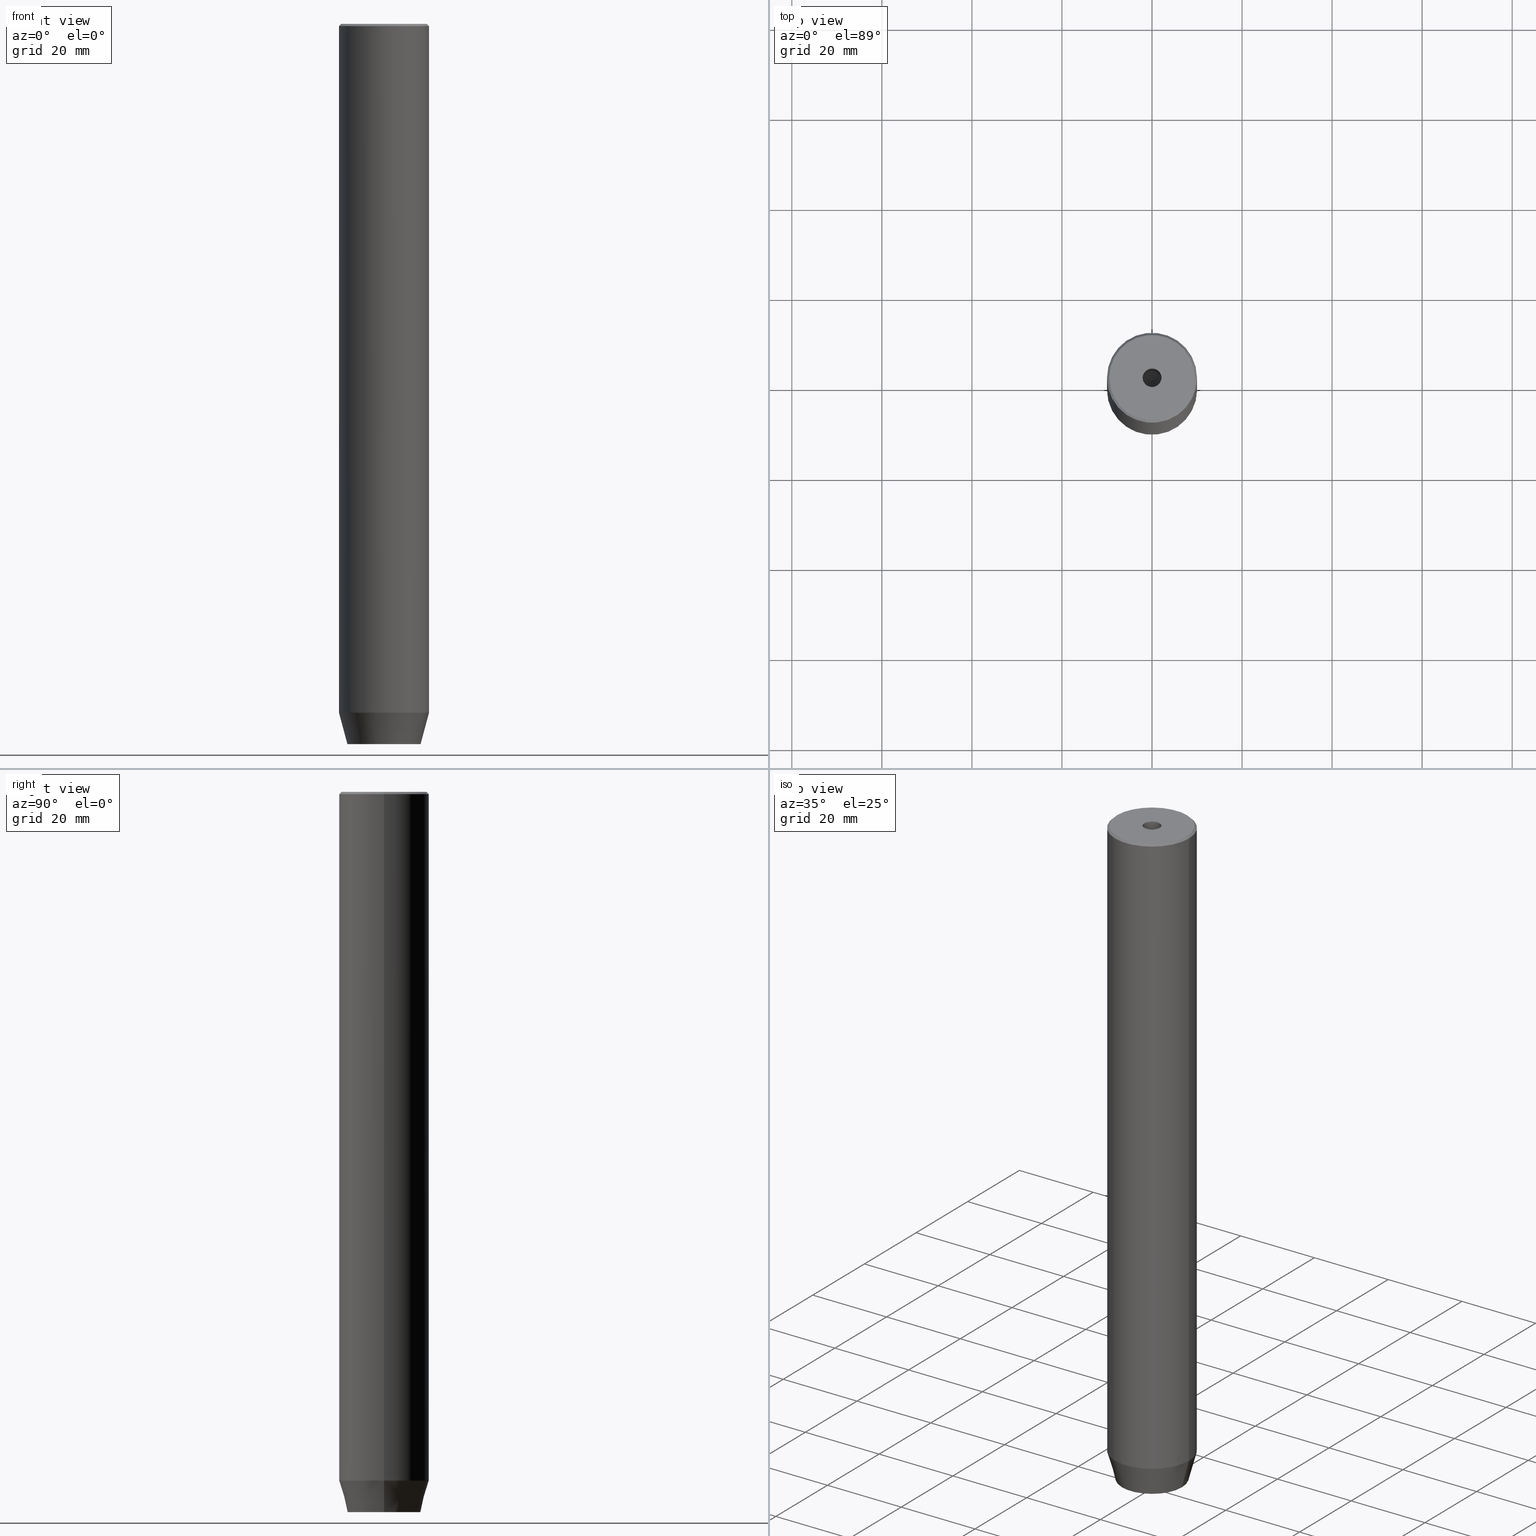
[diagram: canonical four-view strip — front | top / right | iso, engineering-drawing reading convention]
A machine part, canonical four-view strip (front | top / right | iso — engineering-drawing reading convention). The complete STEP part file that produces these views, byte-faithful:
ISO-10303-21;
HEADER;
FILE_DESCRIPTION (( 'STEP AP203' ),
    '1' );
FILE_NAME ('a148.STEP',
    '2024-01-02T19:04:30',
    ( '' ),
    ( '' ),
    'SwSTEP 2.0',
    'SolidWorks 2019',
    '' );
FILE_SCHEMA (( 'CONFIG_CONTROL_DESIGN' ));
ENDSEC;

DATA;
#1 = EDGE_LOOP ( 'NONE', ( #433, #156, #321 ) ) ;
#2 = DIRECTION ( 'NONE',  ( 0.8660254037844385966, -0.5000000000000001110, 0.000000000000000000 ) ) ;
#3 = EDGE_CURVE ( 'NONE', #496, #109, #55, .T. ) ;
#4 = DIRECTION ( 'NONE',  ( 1.000000000000000000, 0.000000000000000000, 0.000000000000000000 ) ) ;
#5 = VERTEX_POINT ( 'NONE', #473 ) ;
#6 = AXIS2_PLACEMENT_3D ( 'NONE', #399, #168, #265 ) ;
#7 = CIRCLE ( 'NONE', #445, 9.499999999999966249 ) ;
#8 = CIRCLE ( 'NONE', #60, 9.499999999999966249 ) ;
#9 = DIRECTION ( 'NONE',  ( -0.5000000000000000000, 0.8660254037844387076, 0.000000000000000000 ) ) ;
#10 = EDGE_LOOP ( 'NONE', ( #181, #19, #151, #415 ) ) ;
#11 = CARTESIAN_POINT ( 'NONE',  ( 2.000000000000000444, 3.464101615137754386, -157.2000000000000171 ) ) ;
#12 = LINE ( 'NONE', #65, #312 ) ;
#13 = ORIENTED_EDGE ( 'NONE', *, *, #194, .F. ) ;
#14 = FACE_OUTER_BOUND ( 'NONE', #91, .T. ) ;
#15 = CARTESIAN_POINT ( 'NONE',  ( 9.499999999999966249, 1.194030629168667300E-15, 0.000000000000000000 ) ) ;
#16 = DIRECTION ( 'NONE',  ( 0.5000000000000003331, -0.8660254037844385966, 0.000000000000000000 ) ) ;
#17 = DIRECTION ( 'NONE',  ( -0.000000000000000000, -0.000000000000000000, 1.000000000000000000 ) ) ;
#18 = EDGE_CURVE ( 'NONE', #478, #392, #522, .T. ) ;
#19 = ORIENTED_EDGE ( 'NONE', *, *, #360, .T. ) ;
#20 = DIRECTION ( 'NONE',  ( 1.000000000000000000, 0.000000000000000000, 0.000000000000000000 ) ) ;
#21 = VECTOR ( 'NONE', #292, 1000.000000000000114 ) ;
#22 = AXIS2_PLACEMENT_3D ( 'NONE', #375, #106, #464 ) ;
#23 = AXIS2_PLACEMENT_3D ( 'NONE', #213, #583, #580 ) ;
#24 = PLANE ( 'NONE',  #114 ) ;
#25 = CARTESIAN_POINT ( 'NONE',  ( 2.099999999999998757, 0.000000000000000000, -1.990051048614449116E-16 ) ) ;
#26 = PLANE ( 'NONE',  #414 ) ;
#27 = DIRECTION ( 'NONE',  ( -0.000000000000000000, -0.000000000000000000, -1.000000000000000000 ) ) ;
#28 = EDGE_CURVE ( 'NONE', #388, #84, #12, .T. ) ;
#29 = DIRECTION ( 'NONE',  ( -0.000000000000000000, 0.000000000000000000, -1.000000000000000000 ) ) ;
#30 = FACE_OUTER_BOUND ( 'NONE', #1, .T. ) ;
#31 = ORIENTED_EDGE ( 'NONE', *, *, #427, .F. ) ;
#32 = APPROVAL_STATUS ( 'not_yet_approved' ) ;
#33 = CARTESIAN_POINT ( 'NONE',  ( 0.000000000000000000, 0.000000000000000000, 0.000000000000000000 ) ) ;
#34 = VECTOR ( 'NONE', #2, 1000.000000000000000 ) ;
#35 = LOCAL_TIME ( 20, 4, 30.00000000000000000, #417 ) ;
#36 = PERSON_AND_ORGANIZATION ( #291, #495 ) ;
#37 = CARTESIAN_POINT ( 'NONE',  ( -4.000000000000000000, 2.309401076758503368, -157.2000000000000171 ) ) ;
#38 = DIRECTION ( 'NONE',  ( 0.5000000000000001110, 0.8660254037844385966, -0.000000000000000000 ) ) ;
#39 = EDGE_CURVE ( 'NONE', #198, #496, #560, .T. ) ;
#40 = FACE_OUTER_BOUND ( 'NONE', #385, .T. ) ;
#41 = ORIENTED_EDGE ( 'NONE', *, *, #298, .T. ) ;
#42 = EDGE_LOOP ( 'NONE', ( #278, #99, #311, #159 ) ) ;
#43 = VECTOR ( 'NONE', #154, 1000.000000000000000 ) ;
#44 =( NAMED_UNIT ( * ) SI_UNIT ( $, .STERADIAN. ) SOLID_ANGLE_UNIT ( ) );
#45 = VECTOR ( 'NONE', #243, 1000.000000000000114 ) ;
#46 = ORIENTED_EDGE ( 'NONE', *, *, #194, .T. ) ;
#47 = ADVANCED_FACE ( 'NONE', ( #439 ), #90, .T. ) ;
#48 = CC_DESIGN_PERSON_AND_ORGANIZATION_ASSIGNMENT ( #361, #406, ( #182 ) ) ;
#49 = ORIENTED_EDGE ( 'NONE', *, *, #451, .F. ) ;
#50 = CIRCLE ( 'NONE', #150, 2.099999999999995648 ) ;
#51 = CARTESIAN_POINT ( 'NONE',  ( 0.000000000000000000, 0.000000000000000000, 0.000000000000000000 ) ) ;
#52 = VECTOR ( 'NONE', #164, 1000.000000000000114 ) ;
#53 = DIRECTION ( 'NONE',  ( -0.8660254037844384856, 0.5000000000000002220, 0.000000000000000000 ) ) ;
#54 = CARTESIAN_POINT ( 'NONE',  ( 0.000000000000000000, 0.000000000000000000, -0.5000000000000264233 ) ) ;
#55 = LINE ( 'NONE', #378, #57 ) ;
#56 = ADVANCED_FACE ( 'NONE', ( #518 ), #178, .T. ) ;
#57 = VECTOR ( 'NONE', #246, 1000.000000000000000 ) ;
#58 = DIRECTION ( 'NONE',  ( -1.000000000000000000, 0.000000000000000000, 0.000000000000000000 ) ) ;
#59 = EDGE_LOOP ( 'NONE', ( #31, #145, #566 ) ) ;
#60 = AXIS2_PLACEMENT_3D ( 'NONE', #162, #347, #521 ) ;
#61 = EDGE_LOOP ( 'NONE', ( #333, #88, #468, #334 ) ) ;
#62 = DIRECTION ( 'NONE',  ( 0.8660254037844387076, 0.5000000000000001110, 0.000000000000000000 ) ) ;
#63 = ORIENTED_EDGE ( 'NONE', *, *, #276, .F. ) ;
#64 = EDGE_CURVE ( 'NONE', #188, #84, #175, .T. ) ;
#65 = CARTESIAN_POINT ( 'NONE',  ( -4.000000000000000000, 0.000000000000000000, -160.0000000000000000 ) ) ;
#66 = DIRECTION ( 'NONE',  ( -0.8660254037844384856, 0.5000000000000002220, 0.000000000000000000 ) ) ;
#67 = DIRECTION ( 'NONE',  ( 0.000000000000000000, 1.000000000000000000, 0.000000000000000000 ) ) ;
#68 = LINE ( 'NONE', #204, #494 ) ;
#69 = DIRECTION ( 'NONE',  ( 0.8660254037844384856, -0.5000000000000002220, 0.000000000000000000 ) ) ;
#70 = DIRECTION ( 'NONE',  ( -0.000000000000000000, -0.000000000000000000, 1.000000000000000000 ) ) ;
#71 = CARTESIAN_POINT ( 'NONE',  ( 4.336808689942017736E-16, -4.618802153517006737, -157.2000000000000171 ) ) ;
#72 = ADVANCED_FACE ( 'NONE', ( #131 ), #492, .F. ) ;
#73 = CARTESIAN_POINT ( 'NONE',  ( -8.124355652982130138, 1.109796706851640162E-15, -160.0000000000000000 ) ) ;
#74 = DIRECTION ( 'NONE',  ( -0.000000000000000000, -0.000000000000000000, 1.000000000000000000 ) ) ;
#75 = COORDINATED_UNIVERSAL_TIME_OFFSET ( 1, 0, .AHEAD. ) ;
#76 = DIRECTION ( 'NONE',  ( 0.8660254037844384856, 0.5000000000000002220, 0.000000000000000000 ) ) ;
#77 = CARTESIAN_POINT ( 'NONE',  ( 2.099999999999995648, 0.000000000000000000, -25.00000000000000000 ) ) ;
#78 = DATE_AND_TIME ( #217, #229 ) ;
#79 = CIRCLE ( 'NONE', #161, 10.00000000000000000 ) ;
#80 = VERTEX_POINT ( 'NONE', #354 ) ;
#81 = ORIENTED_EDGE ( 'NONE', *, *, #3, .T. ) ;
#82 = CARTESIAN_POINT ( 'NONE',  ( 0.000000000000000000, 8.124355652982130138, -160.0000000000000000 ) ) ;
#83 = ADVANCED_FACE ( 'NONE', ( #486, #309 ), #489, .T. ) ;
#84 = VERTEX_POINT ( 'NONE', #497 ) ;
#85 = DESIGN_CONTEXT ( 'detailed design', #236, 'design' ) ;
#86 = CARTESIAN_POINT ( 'NONE',  ( 0.000000000000000000, 0.000000000000000000, -25.00000000000000000 ) ) ;
#87 = DIRECTION ( 'NONE',  ( 0.000000000000000000, 0.000000000000000000, 1.000000000000000000 ) ) ;
#88 = ORIENTED_EDGE ( 'NONE', *, *, #93, .F. ) ;
#89 = APPLICATION_PROTOCOL_DEFINITION ( 'international standard', 'config_control_design', 1994, #236 ) ;
#90 = CONICAL_SURFACE ( 'NONE', #422, 10.00000000000000000, 0.2617993877991497409 ) ;
#91 = EDGE_LOOP ( 'NONE', ( #380, #174, #341, #326 ) ) ;
#92 = VECTOR ( 'NONE', #281, 1000.000000000000000 ) ;
#93 = EDGE_CURVE ( 'NONE', #467, #536, #50, .T. ) ;
#94 = APPROVAL_PERSON_ORGANIZATION ( #313, #144, #401 ) ;
#95 = DIRECTION ( 'NONE',  ( 1.000000000000000000, 0.000000000000000000, 0.000000000000000000 ) ) ;
#96 = EDGE_LOOP ( 'NONE', ( #63, #46, #81, #122 ) ) ;
#97 = CARTESIAN_POINT ( 'NONE',  ( -2.000000000000000888, -3.464101615137754386, -157.2000000000000171 ) ) ;
#98 = ORIENTED_EDGE ( 'NONE', *, *, #184, .F. ) ;
#99 = ORIENTED_EDGE ( 'NONE', *, *, #327, .T. ) ;
#100 = VECTOR ( 'NONE', #466, 1000.000000000000114 ) ;
#101 = EDGE_LOOP ( 'NONE', ( #264, #225, #420, #413 ) ) ;
#102 = ADVANCED_FACE ( 'NONE', ( #514 ), #389, .F. ) ;
#103 = VERTEX_POINT ( 'NONE', #25 ) ;
#104 = DATE_AND_TIME ( #455, #35 ) ;
#105 = APPROVAL ( #32, 'NEUR�EN�' ) ;
#106 = DIRECTION ( 'NONE',  ( -0.000000000000000000, -0.000000000000000000, 1.000000000000000000 ) ) ;
#107 = DIRECTION ( 'NONE',  ( 1.000000000000000000, 0.000000000000000000, 0.000000000000000000 ) ) ;
#108 = CARTESIAN_POINT ( 'NONE',  ( -10.00000000000000000, 1.224646799147353256E-15, -152.9999999999999716 ) ) ;
#109 = VERTEX_POINT ( 'NONE', #475 ) ;
#110 = EDGE_CURVE ( 'NONE', #410, #426, #454, .T. ) ;
#111 = CARTESIAN_POINT ( 'NONE',  ( -2.099999999999996980, 2.571758278209438013E-16, 0.000000000000000000 ) ) ;
#112 = EDGE_LOOP ( 'NONE', ( #283, #269, #359, #49 ) ) ;
#113 = AXIS2_PLACEMENT_3D ( 'NONE', #216, #267, #226 ) ;
#114 = AXIS2_PLACEMENT_3D ( 'NONE', #562, #16, #76 ) ;
#115 = DIRECTION ( 'NONE',  ( 1.000000000000000000, 0.000000000000000000, 0.000000000000000000 ) ) ;
#116 = EDGE_LOOP ( 'NONE', ( #273, #251, #405, #219 ) ) ;
#117 = LINE ( 'NONE', #290, #314 ) ;
#118 = DIRECTION ( 'NONE',  ( -0.000000000000000000, -0.000000000000000000, 1.000000000000000000 ) ) ;
#119 = ORIENTED_EDGE ( 'NONE', *, *, #306, .F. ) ;
#120 = FACE_OUTER_BOUND ( 'NONE', #96, .T. ) ;
#121 = EDGE_CURVE ( 'NONE', #5, #586, #143, .T. ) ;
#122 = ORIENTED_EDGE ( 'NONE', *, *, #148, .T. ) ;
#123 = DIRECTION ( 'NONE',  ( -0.000000000000000000, -0.000000000000000000, -1.000000000000000000 ) ) ;
#124 = CARTESIAN_POINT ( 'NONE',  ( -6.432287649943602629E-15, 0.000000000000000000, -26.26180729995787999 ) ) ;
#125 = VECTOR ( 'NONE', #434, 1000.000000000000000 ) ;
#126 = DIRECTION ( 'NONE',  ( -0.000000000000000000, -0.000000000000000000, 1.000000000000000000 ) ) ;
#127 = CARTESIAN_POINT ( 'NONE',  ( 0.000000000000000000, 0.000000000000000000, -25.00000000000000000 ) ) ;
#128 = APPROVAL_STATUS ( 'not_yet_approved' ) ;
#129 = CARTESIAN_POINT ( 'NONE',  ( 0.000000000000000000, 4.618802153517006737, -157.2000000000000171 ) ) ;
#130 = ORIENTED_EDGE ( 'NONE', *, *, #39, .T. ) ;
#131 = FACE_OUTER_BOUND ( 'NONE', #59, .T. ) ;
#132 = EDGE_CURVE ( 'NONE', #392, #426, #416, .T. ) ;
#133 = DIRECTION ( 'NONE',  ( 1.000000000000000000, 0.000000000000000000, 0.000000000000000000 ) ) ;
#134 = CIRCLE ( 'NONE', #22, 2.099999999999998757 ) ;
#135 = PLANE ( 'NONE',  #587 ) ;
#136 = ORIENTED_EDGE ( 'NONE', *, *, #189, .T. ) ;
#137 = LINE ( 'NONE', #524, #289 ) ;
#138 = LOCAL_TIME ( 20, 4, 30.00000000000000000, #574 ) ;
#139 = DIRECTION ( 'NONE',  ( -0.000000000000000000, -0.000000000000000000, 1.000000000000000000 ) ) ;
#140 = CARTESIAN_POINT ( 'NONE',  ( 0.000000000000000000, 0.000000000000000000, 0.000000000000000000 ) ) ;
#141 = CARTESIAN_POINT ( 'NONE',  ( 2.000000000000000444, 3.464101615137754386, -157.2000000000000171 ) ) ;
#142 = CARTESIAN_POINT ( 'NONE',  ( 2.000000000000000444, 3.464101615137754386, -160.0000000000000000 ) ) ;
#143 = LINE ( 'NONE', #277, #92 ) ;
#144 = APPROVAL ( #128, 'NEUR�EN�' ) ;
#145 = ORIENTED_EDGE ( 'NONE', *, *, #271, .T. ) ;
#146 = SHAPE_DEFINITION_REPRESENTATION ( #258, #358 ) ;
#147 = ORIENTED_EDGE ( 'NONE', *, *, #579, .T. ) ;
#148 = EDGE_CURVE ( 'NONE', #109, #586, #261, .T. ) ;
#149 = DIRECTION ( 'NONE',  ( 0.000000000000000000, 0.000000000000000000, -1.000000000000000000 ) ) ;
#150 = AXIS2_PLACEMENT_3D ( 'NONE', #86, #17, #301 ) ;
#151 = ORIENTED_EDGE ( 'NONE', *, *, #172, .F. ) ;
#152 = CARTESIAN_POINT ( 'NONE',  ( 4.000000000000000000, 2.309401076758503368, -160.0000000000000000 ) ) ;
#153 = CARTESIAN_POINT ( 'NONE',  ( 4.000000000000000000, 0.000000000000000000, -157.2000000000000171 ) ) ;
#154 = DIRECTION ( 'NONE',  ( 0.7071067811865524577, 8.659560562354993255E-17, -0.7071067811865426878 ) ) ;
#155 = LINE ( 'NONE', #295, #304 ) ;
#156 = ORIENTED_EDGE ( 'NONE', *, *, #427, .T. ) ;
#157 = DIRECTION ( 'NONE',  ( 1.000000000000000000, 0.000000000000000000, 0.000000000000000000 ) ) ;
#158 = CARTESIAN_POINT ( 'NONE',  ( 0.000000000000000000, 0.000000000000000000, -152.9999999999999716 ) ) ;
#159 = ORIENTED_EDGE ( 'NONE', *, *, #39, .F. ) ;
#160 = VECTOR ( 'NONE', #205, 1000.000000000000114 ) ;
#161 = AXIS2_PLACEMENT_3D ( 'NONE', #441, #215, #294 ) ;
#162 = CARTESIAN_POINT ( 'NONE',  ( 0.000000000000000000, 0.000000000000000000, 0.000000000000000000 ) ) ;
#163 = FACE_OUTER_BOUND ( 'NONE', #10, .T. ) ;
#164 = DIRECTION ( 'NONE',  ( -0.8660254037844384856, -0.5000000000000002220, 0.000000000000000000 ) ) ;
#165 = EDGE_CURVE ( 'NONE', #545, #356, #190, .T. ) ;
#166 = CARTESIAN_POINT ( 'NONE',  ( 0.000000000000000000, 0.000000000000000000, 0.000000000000000000 ) ) ;
#167 = ORIENTED_EDGE ( 'NONE', *, *, #511, .T. ) ;
#168 = DIRECTION ( 'NONE',  ( 0.000000000000000000, 0.000000000000000000, -1.000000000000000000 ) ) ;
#169 = PERSON_AND_ORGANIZATION ( #291, #495 ) ;
#170 = AXIS2_PLACEMENT_3D ( 'NONE', #430, #470, #107 ) ;
#171 = SECURITY_CLASSIFICATION_LEVEL ( 'unclassified' ) ;
#172 = EDGE_CURVE ( 'NONE', #586, #109, #288, .T. ) ;
#173 = FACE_OUTER_BOUND ( 'NONE', #116, .T. ) ;
#174 = ORIENTED_EDGE ( 'NONE', *, *, #276, .T. ) ;
#175 = LINE ( 'NONE', #37, #577 ) ;
#176 = APPROVAL_DATE_TIME ( #318, #105 ) ;
#177 = ORIENTED_EDGE ( 'NONE', *, *, #327, .F. ) ;
#178 = PLANE ( 'NONE',  #6 ) ;
#179 = CALENDAR_DATE ( 2024, 2, 1 ) ;
#180 = PLANE ( 'NONE',  #362 ) ;
#181 = ORIENTED_EDGE ( 'NONE', *, *, #579, .F. ) ;
#182 = SECURITY_CLASSIFICATION ( '', '', #171 ) ;
#183 = PERSON_AND_ORGANIZATION_ROLE ( 'creator' ) ;
#184 = EDGE_CURVE ( 'NONE', #544, #198, #528, .T. ) ;
#185 = ORIENTED_EDGE ( 'NONE', *, *, #148, .F. ) ;
#186 = CARTESIAN_POINT ( 'NONE',  ( -4.000000000000000000, 2.309401076758503368, -157.2000000000000171 ) ) ;
#187 = AXIS2_PLACEMENT_3D ( 'NONE', #472, #245, #274 ) ;
#188 = VERTEX_POINT ( 'NONE', #186 ) ;
#189 = EDGE_CURVE ( 'NONE', #426, #545, #369, .T. ) ;
#190 = LINE ( 'NONE', #541, #546 ) ;
#191 = ORIENTED_EDGE ( 'NONE', *, *, #189, .F. ) ;
#192 = AXIS2_PLACEMENT_3D ( 'NONE', #339, #395, #157 ) ;
#193 = VECTOR ( 'NONE', #27, 1000.000000000000000 ) ;
#194 = EDGE_CURVE ( 'NONE', #330, #496, #443, .T. ) ;
#195 = DIRECTION ( 'NONE',  ( 0.8660254037844385966, -0.5000000000000001110, 0.000000000000000000 ) ) ;
#196 = DIRECTION ( 'NONE',  ( 1.000000000000000000, 0.000000000000000000, 0.000000000000000000 ) ) ;
#197 = CARTESIAN_POINT ( 'NONE',  ( 4.336808689942017736E-16, -4.618802153517006737, -157.2000000000000171 ) ) ;
#198 = VERTEX_POINT ( 'NONE', #329 ) ;
#199 = DIRECTION ( 'NONE',  ( 0.000000000000000000, 1.000000000000000000, 0.000000000000000000 ) ) ;
#200 = LINE ( 'NONE', #211, #469 ) ;
#201 = CIRCLE ( 'NONE', #192, 2.099999999999998757 ) ;
#202 = PRODUCT_DEFINITION_FORMATION_WITH_SPECIFIED_SOURCE ( 'LIBOVOLN�', '', #357, .NOT_KNOWN. ) ;
#203 = FACE_OUTER_BOUND ( 'NONE', #101, .T. ) ;
#204 = CARTESIAN_POINT ( 'NONE',  ( -2.000000000000000000, 3.464101615137754830, -160.0000000000000000 ) ) ;
#205 = DIRECTION ( 'NONE',  ( 0.8571673007021108903, 0.000000000000000000, 0.5150380749100565980 ) ) ;
#206 = ADVANCED_FACE ( 'NONE', ( #418 ), #332, .F. ) ;
#207 = CARTESIAN_POINT ( 'NONE',  ( 0.000000000000000000, 4.618802153517006737, -157.2000000000000171 ) ) ;
#208 = CARTESIAN_POINT ( 'NONE',  ( -2.000000000000000888, -3.464101615137754386, -157.2000000000000171 ) ) ;
#209 = CC_DESIGN_PERSON_AND_ORGANIZATION_ASSIGNMENT ( #487, #183, ( #508 ) ) ;
#210 = APPLICATION_CONTEXT ( 'configuration controlled 3d designs of mechanical parts and assemblies' ) ;
#211 = CARTESIAN_POINT ( 'NONE',  ( 2.099999999999996980, 0.000000000000000000, 0.000000000000000000 ) ) ;
#212 = FACE_OUTER_BOUND ( 'NONE', #296, .T. ) ;
#213 = CARTESIAN_POINT ( 'NONE',  ( 0.000000000000000000, 0.000000000000000000, -25.00000000000000000 ) ) ;
#214 = EDGE_CURVE ( 'NONE', #103, #80, #134, .T. ) ;
#215 = DIRECTION ( 'NONE',  ( -0.000000000000000000, -0.000000000000000000, 1.000000000000000000 ) ) ;
#216 = CARTESIAN_POINT ( 'NONE',  ( 0.000000000000000000, 0.000000000000000000, -160.0000000000000000 ) ) ;
#217 = CALENDAR_DATE ( 2024, 2, 1 ) ;
#218 = DIRECTION ( 'NONE',  ( -1.000000000000000000, 0.000000000000000000, -0.000000000000000000 ) ) ;
#219 = ORIENTED_EDGE ( 'NONE', *, *, #532, .T. ) ;
#220 = ORIENTED_EDGE ( 'NONE', *, *, #132, .T. ) ;
#221 = ORIENTED_EDGE ( 'NONE', *, *, #298, .F. ) ;
#222 = EDGE_CURVE ( 'NONE', #80, #103, #201, .T. ) ;
#223 = CIRCLE ( 'NONE', #23, 2.099999999999995648 ) ;
#224 = VECTOR ( 'NONE', #564, 1000.000000000000000 ) ;
#225 = ORIENTED_EDGE ( 'NONE', *, *, #446, .F. ) ;
#226 = DIRECTION ( 'NONE',  ( 1.000000000000000000, 0.000000000000000000, 0.000000000000000000 ) ) ;
#227 = EDGE_CURVE ( 'NONE', #462, #188, #117, .T. ) ;
#228 = CONICAL_SURFACE ( 'NONE', #480, 2.099999999999995648, 1.029744258676651647 ) ;
#229 = LOCAL_TIME ( 20, 4, 30.00000000000000000, #75 ) ;
#230 = DIRECTION ( 'NONE',  ( 1.000000000000000000, 0.000000000000000000, 0.000000000000000000 ) ) ;
#231 = DIRECTION ( 'NONE',  ( -0.000000000000000000, -0.000000000000000000, -1.000000000000000000 ) ) ;
#232 = CARTESIAN_POINT ( 'NONE',  ( 4.336808689942017736E-16, -4.618802153517006737, -160.0000000000000000 ) ) ;
#233 = ORIENTED_EDGE ( 'NONE', *, *, #463, .T. ) ;
#234 = ORIENTED_EDGE ( 'NONE', *, *, #446, .T. ) ;
#235 = CC_DESIGN_PERSON_AND_ORGANIZATION_ASSIGNMENT ( #36, #452, ( #357 ) ) ;
#236 = APPLICATION_CONTEXT ( 'configuration controlled 3d designs of mechanical parts and assemblies' ) ;
#237 = ORIENTED_EDGE ( 'NONE', *, *, #110, .F. ) ;
#238 = CARTESIAN_POINT ( 'NONE',  ( 0.000000000000000000, 0.000000000000000000, -152.9999999999999716 ) ) ;
#239 = AXIS2_PLACEMENT_3D ( 'NONE', #141, #38, #498 ) ;
#240 = DIRECTION ( 'NONE',  ( -0.000000000000000000, -0.000000000000000000, 1.000000000000000000 ) ) ;
#241 = DIRECTION ( 'NONE',  ( -0.000000000000000000, -0.000000000000000000, -1.000000000000000000 ) ) ;
#242 = ORIENTED_EDGE ( 'NONE', *, *, #184, .T. ) ;
#243 = DIRECTION ( 'NONE',  ( -0.8571673007021108903, 1.049727191138616847E-16, 0.5150380749100565980 ) ) ;
#244 = PLANE ( 'NONE',  #262 ) ;
#245 = DIRECTION ( 'NONE',  ( -0.000000000000000000, -0.000000000000000000, 1.000000000000000000 ) ) ;
#246 = DIRECTION ( 'NONE',  ( -0.000000000000000000, -0.000000000000000000, 1.000000000000000000 ) ) ;
#247 = ADVANCED_FACE ( 'NONE', ( #14 ), #386, .T. ) ;
#248 = DIRECTION ( 'NONE',  ( -0.000000000000000000, -0.000000000000000000, 1.000000000000000000 ) ) ;
#249 = AXIS2_PLACEMENT_3D ( 'NONE', #158, #248, #20 ) ;
#250 = FACE_OUTER_BOUND ( 'NONE', #112, .T. ) ;
#251 = ORIENTED_EDGE ( 'NONE', *, *, #64, .F. ) ;
#252 = FACE_OUTER_BOUND ( 'NONE', #391, .T. ) ;
#253 = CARTESIAN_POINT ( 'NONE',  ( 10.00000000000000000, 0.000000000000000000, -152.9999999999999716 ) ) ;
#254 = CARTESIAN_POINT ( 'NONE',  ( 4.000000000000000000, -2.309401076758502480, -160.0000000000000000 ) ) ;
#255 = CARTESIAN_POINT ( 'NONE',  ( 2.168404344971008868E-16, 4.618802153517006737, -160.0000000000000000 ) ) ;
#256 = ADVANCED_FACE ( 'NONE', ( #252 ), #26, .F. ) ;
#257 = PLANE ( 'NONE',  #239 ) ;
#258 = PRODUCT_DEFINITION_SHAPE ( 'NONE', 'NONE',  #508 ) ;
#259 = DIRECTION ( 'NONE',  ( -0.000000000000000000, -0.000000000000000000, 1.000000000000000000 ) ) ;
#260 = CARTESIAN_POINT ( 'NONE',  ( 0.000000000000000000, 0.000000000000000000, -0.5000000000000264233 ) ) ;
#261 = CIRCLE ( 'NONE', #477, 10.00000000000000000 ) ;
#262 = AXIS2_PLACEMENT_3D ( 'NONE', #153, #440, #29 ) ;
#263 = DIRECTION ( 'NONE',  ( -0.5000000000000003331, -0.8660254037844385966, 0.000000000000000000 ) ) ;
#264 = ORIENTED_EDGE ( 'NONE', *, *, #165, .T. ) ;
#265 = DIRECTION ( 'NONE',  ( -1.000000000000000000, 0.000000000000000000, -0.000000000000000000 ) ) ;
#266 = DIRECTION ( 'NONE',  ( 1.000000000000000000, 0.000000000000000000, 0.000000000000000000 ) ) ;
#267 = DIRECTION ( 'NONE',  ( -0.000000000000000000, -0.000000000000000000, 1.000000000000000000 ) ) ;
#268 = VERTEX_POINT ( 'NONE', #529 ) ;
#269 = ORIENTED_EDGE ( 'NONE', *, *, #568, .T. ) ;
#270 = PERSON_AND_ORGANIZATION ( #291, #495 ) ;
#271 = EDGE_CURVE ( 'NONE', #372, #467, #308, .T. ) ;
#272 = VECTOR ( 'NONE', #123, 1000.000000000000000 ) ;
#273 = ORIENTED_EDGE ( 'NONE', *, *, #28, .T. ) ;
#274 = DIRECTION ( 'NONE',  ( 1.000000000000000000, 0.000000000000000000, 0.000000000000000000 ) ) ;
#275 = PERSON_AND_ORGANIZATION ( #291, #495 ) ;
#276 = EDGE_CURVE ( 'NONE', #330, #586, #137, .T. ) ;
#277 = CARTESIAN_POINT ( 'NONE',  ( -9.499999999999966249, 0.000000000000000000, 0.000000000000000000 ) ) ;
#278 = ORIENTED_EDGE ( 'NONE', *, *, #547, .T. ) ;
#279 = LOCAL_TIME ( 20, 4, 30.00000000000000000, #538 ) ;
#280 = DIRECTION ( 'NONE',  ( -0.000000000000000000, -0.000000000000000000, 1.000000000000000000 ) ) ;
#281 = DIRECTION ( 'NONE',  ( -0.7071067811865524577, 0.000000000000000000, -0.7071067811865426878 ) ) ;
#282 = EDGE_CURVE ( 'NONE', #536, #467, #223, .T. ) ;
#283 = ORIENTED_EDGE ( 'NONE', *, *, #282, .F. ) ;
#284 = CARTESIAN_POINT ( 'NONE',  ( -4.000000000000000000, 0.000000000000000000, -157.2000000000000171 ) ) ;
#285 = DIRECTION ( 'NONE',  ( -0.8660254037844385966, -0.4999999999999999445, 0.000000000000000000 ) ) ;
#286 = ORIENTED_EDGE ( 'NONE', *, *, #532, .F. ) ;
#287 = FACE_OUTER_BOUND ( 'NONE', #42, .T. ) ;
#288 = CIRCLE ( 'NONE', #370, 10.00000000000000000 ) ;
#289 = VECTOR ( 'NONE', #438, 1000.000000000000000 ) ;
#290 = CARTESIAN_POINT ( 'NONE',  ( -4.000000000000000000, 0.000000000000000000, -157.2000000000000171 ) ) ;
#291 = PERSON ( 'NEUR�EN�', 'NEUR�EN�', 'NEUR�EN�', ('NEUR�EN�'), ('NEUR�EN�'), ('NEUR�EN�') ) ;
#292 = DIRECTION ( 'NONE',  ( 0.2588190451025210170, 0.000000000000000000, 0.9659258262890680902 ) ) ;
#293 = DIRECTION ( 'NONE',  ( 0.000000000000000000, 0.000000000000000000, -1.000000000000000000 ) ) ;
#294 = DIRECTION ( 'NONE',  ( 1.000000000000000000, 0.000000000000000000, 0.000000000000000000 ) ) ;
#295 = CARTESIAN_POINT ( 'NONE',  ( 4.000000000000000000, 0.000000000000000000, -157.2000000000000171 ) ) ;
#296 = EDGE_LOOP ( 'NONE', ( #220, #237, #493, #581 ) ) ;
#297 = CARTESIAN_POINT ( 'NONE',  ( 0.000000000000000000, 0.000000000000000000, 0.000000000000000000 ) ) ;
#298 = EDGE_CURVE ( 'NONE', #5, #485, #7, .T. ) ;
#299 = CARTESIAN_POINT ( 'NONE',  ( 0.000000000000000000, 0.000000000000000000, 0.000000000000000000 ) ) ;
#300 = CARTESIAN_POINT ( 'NONE',  ( -4.000000000000000000, -2.309401076758503368, -157.2000000000000171 ) ) ;
#301 = DIRECTION ( 'NONE',  ( 1.000000000000000000, 0.000000000000000000, 0.000000000000000000 ) ) ;
#302 = AXIS2_PLACEMENT_3D ( 'NONE', #556, #9, #285 ) ;
#303 = CARTESIAN_POINT ( 'NONE',  ( -2.099999999999995648, 2.571758278209436040E-16, -25.00000000000000000 ) ) ;
#304 = VECTOR ( 'NONE', #460, 1000.000000000000000 ) ;
#305 = CARTESIAN_POINT ( 'NONE',  ( -4.000000000000000000, -2.309401076758503368, -160.0000000000000000 ) ) ;
#306 = EDGE_CURVE ( 'NONE', #84, #392, #68, .T. ) ;
#307 = CARTESIAN_POINT ( 'NONE',  ( -10.00000000000000000, 1.224646799147353256E-15, -0.5000000000000264233 ) ) ;
#308 = LINE ( 'NONE', #77, #160 ) ;
#309 = FACE_OUTER_BOUND ( 'NONE', #450, .T. ) ;
#310 = MECHANICAL_CONTEXT ( 'NONE', #210, 'mechanical' ) ;
#311 = ORIENTED_EDGE ( 'NONE', *, *, #403, .F. ) ;
#312 = VECTOR ( 'NONE', #67, 1000.000000000000000 ) ;
#313 = PERSON_AND_ORGANIZATION ( #291, #495 ) ;
#314 = VECTOR ( 'NONE', #199, 1000.000000000000000 ) ;
#315 = APPROVAL_PERSON_ORGANIZATION ( #169, #105, #576 ) ;
#316 = DIRECTION ( 'NONE',  ( 1.000000000000000000, 0.000000000000000000, 0.000000000000000000 ) ) ;
#317 = DIRECTION ( 'NONE',  ( 0.000000000000000000, 0.000000000000000000, -1.000000000000000000 ) ) ;
#318 = DATE_AND_TIME ( #179, #138 ) ;
#319 = ADVANCED_FACE ( 'NONE', ( #504, #40 ), #180, .T. ) ;
#320 = DIRECTION ( 'NONE',  ( 0.000000000000000000, -0.000000000000000000, 1.000000000000000000 ) ) ;
#321 = ORIENTED_EDGE ( 'NONE', *, *, #282, .T. ) ;
#322 = DATE_TIME_ROLE ( 'classification_date' ) ;
#323 = ORIENTED_EDGE ( 'NONE', *, *, #18, .F. ) ;
#324 = VECTOR ( 'NONE', #231, 1000.000000000000000 ) ;
#325 = DIRECTION ( 'NONE',  ( 0.8660254037844387076, 0.5000000000000001110, 0.000000000000000000 ) ) ;
#326 = ORIENTED_EDGE ( 'NONE', *, *, #3, .F. ) ;
#327 = EDGE_CURVE ( 'NONE', #544, #330, #549, .T. ) ;
#328 = CARTESIAN_POINT ( 'NONE',  ( 4.000000000000000000, 0.000000000000000000, -160.0000000000000000 ) ) ;
#329 = CARTESIAN_POINT ( 'NONE',  ( 8.124355652982130138, 0.000000000000000000, -160.0000000000000000 ) ) ;
#330 = VERTEX_POINT ( 'NONE', #552 ) ;
#331 = LINE ( 'NONE', #97, #371 ) ;
#332 = CYLINDRICAL_SURFACE ( 'NONE', #457, 2.099999999999996980 ) ;
#333 = ORIENTED_EDGE ( 'NONE', *, *, #568, .F. ) ;
#334 = ORIENTED_EDGE ( 'NONE', *, *, #214, .T. ) ;
#335 = ORIENTED_EDGE ( 'NONE', *, *, #227, .T. ) ;
#336 = LINE ( 'NONE', #197, #193 ) ;
#337 = ORIENTED_EDGE ( 'NONE', *, *, #511, .F. ) ;
#338 = ORIENTED_EDGE ( 'NONE', *, *, #349, .F. ) ;
#339 = CARTESIAN_POINT ( 'NONE',  ( 0.000000000000000000, 0.000000000000000000, -1.990051048614449116E-16 ) ) ;
#340 = LINE ( 'NONE', #519, #224 ) ;
#341 = ORIENTED_EDGE ( 'NONE', *, *, #172, .T. ) ;
#342 = AXIS2_PLACEMENT_3D ( 'NONE', #166, #259, #350 ) ;
#343 = EDGE_CURVE ( 'NONE', #410, #268, #155, .T. ) ;
#344 = AXIS2_PLACEMENT_3D ( 'NONE', #33, #523, #565 ) ;
#345 = VECTOR ( 'NONE', #62, 999.9999999999998863 ) ;
#346 = LINE ( 'NONE', #437, #408 ) ;
#347 = DIRECTION ( 'NONE',  ( -0.000000000000000000, -0.000000000000000000, 1.000000000000000000 ) ) ;
#348 = LINE ( 'NONE', #481, #52 ) ;
#349 = EDGE_CURVE ( 'NONE', #453, #462, #331, .T. ) ;
#350 = DIRECTION ( 'NONE',  ( 1.000000000000000000, 0.000000000000000000, 0.000000000000000000 ) ) ;
#351 = ORIENTED_EDGE ( 'NONE', *, *, #463, .F. ) ;
#352 = ORIENTED_EDGE ( 'NONE', *, *, #132, .F. ) ;
#353 = DIRECTION ( 'NONE',  ( -0.8660254037844384856, -0.5000000000000002220, 0.000000000000000000 ) ) ;
#354 = CARTESIAN_POINT ( 'NONE',  ( -2.099999999999998757, 2.571758278209440478E-16, -1.990051048614449116E-16 ) ) ;
#355 = DATE_AND_TIME ( #364, #279 ) ;
#356 = VERTEX_POINT ( 'NONE', #232 ) ;
#357 = PRODUCT ( 'a148', 'a148', '', ( #310 ) ) ;
#358 = ADVANCED_BREP_SHAPE_REPRESENTATION ( 'a148', ( #534, #539 ), #557 ) ;
#359 = ORIENTED_EDGE ( 'NONE', *, *, #222, .T. ) ;
#360 = EDGE_CURVE ( 'NONE', #485, #109, #419, .T. ) ;
#361 = PERSON_AND_ORGANIZATION ( #291, #495 ) ;
#362 = AXIS2_PLACEMENT_3D ( 'NONE', #140, #320, #95 ) ;
#363 = DIRECTION ( 'NONE',  ( -0.000000000000000000, -0.000000000000000000, -1.000000000000000000 ) ) ;
#364 = CALENDAR_DATE ( 2024, 2, 1 ) ;
#365 = EDGE_LOOP ( 'NONE', ( #136, #573, #381, #520 ) ) ;
#366 = ADVANCED_FACE ( 'NONE', ( #203 ), #24, .F. ) ;
#367 = DIRECTION ( 'NONE',  ( 0.000000000000000000, 0.000000000000000000, 1.000000000000000000 ) ) ;
#368 = CARTESIAN_POINT ( 'NONE',  ( 0.000000000000000000, 0.000000000000000000, 0.000000000000000000 ) ) ;
#369 = LINE ( 'NONE', #328, #390 ) ;
#370 = AXIS2_PLACEMENT_3D ( 'NONE', #260, #447, #316 ) ;
#371 = VECTOR ( 'NONE', #53, 1000.000000000000114 ) ;
#372 = VERTEX_POINT ( 'NONE', #124 ) ;
#373 = CC_DESIGN_APPROVAL ( #535, ( #182 ) ) ;
#374 = APPROVAL_DATE_TIME ( #104, #535 ) ;
#375 = CARTESIAN_POINT ( 'NONE',  ( 0.000000000000000000, 0.000000000000000000, -1.990051048614449116E-16 ) ) ;
#376 = APPROVAL_STATUS ( 'not_yet_approved' ) ;
#377 = ADVANCED_FACE ( 'NONE', ( #163 ), #585, .T. ) ;
#378 = CARTESIAN_POINT ( 'NONE',  ( 10.00000000000000000, 0.000000000000000000, 0.000000000000000000 ) ) ;
#379 = AXIS2_PLACEMENT_3D ( 'NONE', #394, #240, #383 ) ;
#380 = ORIENTED_EDGE ( 'NONE', *, *, #403, .T. ) ;
#381 = ORIENTED_EDGE ( 'NONE', *, *, #343, .F. ) ;
#382 = ORIENTED_EDGE ( 'NONE', *, *, #28, .F. ) ;
#383 = DIRECTION ( 'NONE',  ( 1.000000000000000000, 0.000000000000000000, 0.000000000000000000 ) ) ;
#384 = ADVANCED_FACE ( 'NONE', ( #250 ), #516, .F. ) ;
#385 = EDGE_LOOP ( 'NONE', ( #41, #147 ) ) ;
#386 = CYLINDRICAL_SURFACE ( 'NONE', #479, 10.00000000000000000 ) ;
#387 = CARTESIAN_POINT ( 'NONE',  ( 4.000000000000000000, -2.309401076758502480, -157.2000000000000171 ) ) ;
#388 = VERTEX_POINT ( 'NONE', #305 ) ;
#389 = PLANE ( 'NONE',  #302 ) ;
#390 = VECTOR ( 'NONE', #505, 1000.000000000000000 ) ;
#391 = EDGE_LOOP ( 'NONE', ( #167, #286, #338, #234 ) ) ;
#392 = VERTEX_POINT ( 'NONE', #255 ) ;
#393 = CONICAL_SURFACE ( 'NONE', #249, 10.00000000000000000, 0.2617993877991497409 ) ;
#394 = CARTESIAN_POINT ( 'NONE',  ( 0.000000000000000000, 0.000000000000000000, -160.0000000000000000 ) ) ;
#395 = DIRECTION ( 'NONE',  ( -0.000000000000000000, -0.000000000000000000, 1.000000000000000000 ) ) ;
#396 = ADVANCED_FACE ( 'NONE', ( #30 ), #228, .F. ) ;
#397 = LINE ( 'NONE', #425, #45 ) ;
#398 = APPLICATION_PROTOCOL_DEFINITION ( 'international standard', 'config_control_design', 1994, #210 ) ;
#399 = CARTESIAN_POINT ( 'NONE',  ( 0.000000000000000000, 0.000000000000000000, -157.2000000000000171 ) ) ;
#400 = PERSON_AND_ORGANIZATION ( #291, #495 ) ;
#401 = APPROVAL_ROLE ( '' ) ;
#402 = ORIENTED_EDGE ( 'NONE', *, *, #214, .F. ) ;
#403 = EDGE_CURVE ( 'NONE', #496, #330, #79, .T. ) ;
#404 = CALENDAR_DATE ( 2024, 2, 1 ) ;
#405 = ORIENTED_EDGE ( 'NONE', *, *, #227, .F. ) ;
#406 = PERSON_AND_ORGANIZATION_ROLE ( 'classification_officer' ) ;
#407 = AXIS2_PLACEMENT_3D ( 'NONE', #127, #139, #133 ) ;
#408 = VECTOR ( 'NONE', #66, 1000.000000000000114 ) ;
#409 = EDGE_LOOP ( 'NONE', ( #402, #578 ) ) ;
#410 = VERTEX_POINT ( 'NONE', #432 ) ;
#411 = ADVANCED_FACE ( 'NONE', ( #173 ), #135, .F. ) ;
#412 = APPROVAL_ROLE ( '' ) ;
#413 = ORIENTED_EDGE ( 'NONE', *, *, #488, .T. ) ;
#414 = AXIS2_PLACEMENT_3D ( 'NONE', #208, #263, #69 ) ;
#415 = ORIENTED_EDGE ( 'NONE', *, *, #121, .F. ) ;
#416 = LINE ( 'NONE', #142, #34 ) ;
#417 = COORDINATED_UNIVERSAL_TIME_OFFSET ( 1, 0, .AHEAD. ) ;
#418 = FACE_OUTER_BOUND ( 'NONE', #61, .T. ) ;
#419 = LINE ( 'NONE', #435, #43 ) ;
#420 = ORIENTED_EDGE ( 'NONE', *, *, #458, .F. ) ;
#421 = ORIENTED_EDGE ( 'NONE', *, *, #547, .F. ) ;
#422 = AXIS2_PLACEMENT_3D ( 'NONE', #238, #429, #196 ) ;
#423 = CONICAL_SURFACE ( 'NONE', #542, 9.499999999999966249, 0.7853981633974552734 ) ;
#424 = ORIENTED_EDGE ( 'NONE', *, *, #360, .F. ) ;
#425 = CARTESIAN_POINT ( 'NONE',  ( -2.099999999999995648, 2.571758278209436040E-16, -25.00000000000000000 ) ) ;
#426 = VERTEX_POINT ( 'NONE', #152 ) ;
#427 = EDGE_CURVE ( 'NONE', #372, #536, #397, .T. ) ;
#428 = EDGE_LOOP ( 'NONE', ( #449, #323, #351, #507 ) ) ;
#429 = DIRECTION ( 'NONE',  ( -0.000000000000000000, -0.000000000000000000, 1.000000000000000000 ) ) ;
#430 = CARTESIAN_POINT ( 'NONE',  ( 0.000000000000000000, 0.000000000000000000, 0.000000000000000000 ) ) ;
#431 = PRODUCT_RELATED_PRODUCT_CATEGORY ( 'detail', '', ( #357 ) ) ;
#432 = CARTESIAN_POINT ( 'NONE',  ( 4.000000000000000000, 2.309401076758503368, -157.2000000000000171 ) ) ;
#433 = ORIENTED_EDGE ( 'NONE', *, *, #271, .F. ) ;
#434 = DIRECTION ( 'NONE',  ( -0.000000000000000000, -0.000000000000000000, 1.000000000000000000 ) ) ;
#435 = CARTESIAN_POINT ( 'NONE',  ( 9.499999999999966249, 1.163414459189981344E-15, 0.000000000000000000 ) ) ;
#436 = APPROVAL_PERSON_ORGANIZATION ( #275, #535, #412 ) ;
#437 = CARTESIAN_POINT ( 'NONE',  ( -2.000000000000000888, -3.464101615137754386, -160.0000000000000000 ) ) ;
#438 = DIRECTION ( 'NONE',  ( -0.000000000000000000, -0.000000000000000000, 1.000000000000000000 ) ) ;
#439 = FACE_OUTER_BOUND ( 'NONE', #510, .T. ) ;
#440 = DIRECTION ( 'NONE',  ( 1.000000000000000000, 0.000000000000000000, -0.000000000000000000 ) ) ;
#441 = CARTESIAN_POINT ( 'NONE',  ( 0.000000000000000000, 0.000000000000000000, -152.9999999999999716 ) ) ;
#442 = APPROVAL_DATE_TIME ( #540, #144 ) ;
#443 = CIRCLE ( 'NONE', #187, 10.00000000000000000 ) ;
#444 = CARTESIAN_POINT ( 'NONE',  ( 0.000000000000000000, 0.000000000000000000, 0.000000000000000000 ) ) ;
#445 = AXIS2_PLACEMENT_3D ( 'NONE', #368, #126, #491 ) ;
#446 = EDGE_CURVE ( 'NONE', #453, #356, #336, .T. ) ;
#447 = DIRECTION ( 'NONE',  ( 0.000000000000000000, 0.000000000000000000, -1.000000000000000000 ) ) ;
#448 = COORDINATED_UNIVERSAL_TIME_OFFSET ( 1, 0, .AHEAD. ) ;
#449 = ORIENTED_EDGE ( 'NONE', *, *, #306, .T. ) ;
#450 = EDGE_LOOP ( 'NONE', ( #421, #98 ) ) ;
#451 = EDGE_CURVE ( 'NONE', #467, #103, #200, .T. ) ;
#452 = PERSON_AND_ORGANIZATION_ROLE ( 'design_owner' ) ;
#453 = VERTEX_POINT ( 'NONE', #71 ) ;
#454 = LINE ( 'NONE', #456, #324 ) ;
#455 = CALENDAR_DATE ( 2024, 2, 1 ) ;
#456 = CARTESIAN_POINT ( 'NONE',  ( 4.000000000000000000, 2.309401076758503368, -157.2000000000000171 ) ) ;
#457 = AXIS2_PLACEMENT_3D ( 'NONE', #51, #280, #230 ) ;
#458 = EDGE_CURVE ( 'NONE', #268, #453, #348, .T. ) ;
#459 = LOCAL_TIME ( 20, 4, 30.00000000000000000, #448 ) ;
#460 = DIRECTION ( 'NONE',  ( 0.000000000000000000, -1.000000000000000000, 0.000000000000000000 ) ) ;
#461 = ORIENTED_EDGE ( 'NONE', *, *, #458, .T. ) ;
#462 = VERTEX_POINT ( 'NONE', #300 ) ;
#463 = EDGE_CURVE ( 'NONE', #188, #478, #550, .T. ) ;
#464 = DIRECTION ( 'NONE',  ( 1.000000000000000000, 0.000000000000000000, 0.000000000000000000 ) ) ;
#465 = FACE_OUTER_BOUND ( 'NONE', #537, .T. ) ;
#466 = DIRECTION ( 'NONE',  ( -0.2588190451025210170, 3.169619151431768639E-17, 0.9659258262890680902 ) ) ;
#467 = VERTEX_POINT ( 'NONE', #526 ) ;
#468 = ORIENTED_EDGE ( 'NONE', *, *, #451, .T. ) ;
#469 = VECTOR ( 'NONE', #118, 1000.000000000000000 ) ;
#470 = DIRECTION ( 'NONE',  ( -0.000000000000000000, -0.000000000000000000, 1.000000000000000000 ) ) ;
#471 = LINE ( 'NONE', #11, #517 ) ;
#472 = CARTESIAN_POINT ( 'NONE',  ( 0.000000000000000000, 0.000000000000000000, -152.9999999999999716 ) ) ;
#473 = CARTESIAN_POINT ( 'NONE',  ( -9.499999999999966249, 0.000000000000000000, 0.000000000000000000 ) ) ;
#474 = LINE ( 'NONE', #387, #272 ) ;
#475 = CARTESIAN_POINT ( 'NONE',  ( 10.00000000000000000, 0.000000000000000000, -0.5000000000000264233 ) ) ;
#476 = ADVANCED_FACE ( 'NONE', ( #120 ), #513, .T. ) ;
#477 = AXIS2_PLACEMENT_3D ( 'NONE', #54, #149, #4 ) ;
#478 = VERTEX_POINT ( 'NONE', #207 ) ;
#479 = AXIS2_PLACEMENT_3D ( 'NONE', #299, #70, #525 ) ;
#480 = AXIS2_PLACEMENT_3D ( 'NONE', #482, #74, #115 ) ;
#481 = CARTESIAN_POINT ( 'NONE',  ( 2.000000000000000888, -3.464101615137754386, -157.2000000000000171 ) ) ;
#482 = CARTESIAN_POINT ( 'NONE',  ( 0.000000000000000000, 0.000000000000000000, -25.00000000000000000 ) ) ;
#483 = CC_DESIGN_DATE_AND_TIME_ASSIGNMENT ( #355, #322, ( #182 ) ) ;
#484 = ORIENTED_EDGE ( 'NONE', *, *, #343, .T. ) ;
#485 = VERTEX_POINT ( 'NONE', #15 ) ;
#486 = FACE_BOUND ( 'NONE', #500, .T. ) ;
#487 = PERSON_AND_ORGANIZATION ( #291, #495 ) ;
#488 = EDGE_CURVE ( 'NONE', #268, #545, #474, .T. ) ;
#489 = PLANE ( 'NONE',  #569 ) ;
#490 =( LENGTH_UNIT ( ) NAMED_UNIT ( * ) SI_UNIT ( .MILLI., .METRE. ) );
#491 = DIRECTION ( 'NONE',  ( 1.000000000000000000, 0.000000000000000000, 0.000000000000000000 ) ) ;
#492 = CONICAL_SURFACE ( 'NONE', #407, 2.099999999999995648, 1.029744258676651647 ) ;
#493 = ORIENTED_EDGE ( 'NONE', *, *, #506, .F. ) ;
#494 = VECTOR ( 'NONE', #325, 999.9999999999998863 ) ;
#495 = ORGANIZATION ( 'NEUR�EN�', 'NEUR�EN�', '' ) ;
#496 = VERTEX_POINT ( 'NONE', #554 ) ;
#497 = CARTESIAN_POINT ( 'NONE',  ( -4.000000000000000000, 2.309401076758503368, -160.0000000000000000 ) ) ;
#498 = DIRECTION ( 'NONE',  ( -0.8660254037844385966, 0.5000000000000001110, 0.000000000000000000 ) ) ;
#499 = ADVANCED_FACE ( 'NONE', ( #287 ), #393, .T. ) ;
#500 = EDGE_LOOP ( 'NONE', ( #119, #382, #337, #553, #191, #352 ) ) ;
#501 = DATE_TIME_ROLE ( 'creation_date' ) ;
#502 = EDGE_LOOP ( 'NONE', ( #233, #567, #484, #461, #512, #335 ) ) ;
#503 = CC_DESIGN_APPROVAL ( #144, ( #508 ) ) ;
#504 = FACE_BOUND ( 'NONE', #409, .T. ) ;
#505 = DIRECTION ( 'NONE',  ( 0.000000000000000000, -1.000000000000000000, 0.000000000000000000 ) ) ;
#506 = EDGE_CURVE ( 'NONE', #478, #410, #471, .T. ) ;
#507 = ORIENTED_EDGE ( 'NONE', *, *, #64, .T. ) ;
#508 = PRODUCT_DEFINITION ( 'NEZN�M�', '', #202, #85 ) ;
#509 = CC_DESIGN_SECURITY_CLASSIFICATION ( #182, ( #202 ) ) ;
#510 = EDGE_LOOP ( 'NONE', ( #177, #242, #130, #13 ) ) ;
#511 = EDGE_CURVE ( 'NONE', #356, #388, #346, .T. ) ;
#512 = ORIENTED_EDGE ( 'NONE', *, *, #349, .T. ) ;
#513 = CYLINDRICAL_SURFACE ( 'NONE', #170, 10.00000000000000000 ) ;
#514 = FACE_OUTER_BOUND ( 'NONE', #428, .T. ) ;
#515 = LINE ( 'NONE', #111, #125 ) ;
#516 = CYLINDRICAL_SURFACE ( 'NONE', #342, 2.099999999999996980 ) ;
#517 = VECTOR ( 'NONE', #195, 1000.000000000000000 ) ;
#518 = FACE_OUTER_BOUND ( 'NONE', #502, .T. ) ;
#519 = CARTESIAN_POINT ( 'NONE',  ( -4.000000000000000000, -2.309401076758503368, -157.2000000000000171 ) ) ;
#520 = ORIENTED_EDGE ( 'NONE', *, *, #110, .T. ) ;
#521 = DIRECTION ( 'NONE',  ( 1.000000000000000000, 0.000000000000000000, 0.000000000000000000 ) ) ;
#522 = LINE ( 'NONE', #129, #527 ) ;
#523 = DIRECTION ( 'NONE',  ( 0.000000000000000000, 0.000000000000000000, -1.000000000000000000 ) ) ;
#524 = CARTESIAN_POINT ( 'NONE',  ( -10.00000000000000000, 1.224646799147353256E-15, 0.000000000000000000 ) ) ;
#525 = DIRECTION ( 'NONE',  ( 1.000000000000000000, 0.000000000000000000, 0.000000000000000000 ) ) ;
#526 = CARTESIAN_POINT ( 'NONE',  ( 2.099999999999995648, 0.000000000000000000, -25.00000000000000000 ) ) ;
#527 = VECTOR ( 'NONE', #241, 1000.000000000000000 ) ;
#528 = CIRCLE ( 'NONE', #113, 8.124355652982130138 ) ;
#529 = CARTESIAN_POINT ( 'NONE',  ( 4.000000000000000000, -2.309401076758502480, -157.2000000000000171 ) ) ;
#530 = PERSON_AND_ORGANIZATION_ROLE ( 'creator' ) ;
#531 = DIRECTION ( 'NONE',  ( -1.000000000000000000, 0.000000000000000000, 0.000000000000000000 ) ) ;
#532 = EDGE_CURVE ( 'NONE', #462, #388, #340, .T. ) ;
#533 =( NAMED_UNIT ( * ) PLANE_ANGLE_UNIT ( ) SI_UNIT ( $, .RADIAN. ) );
#534 = MANIFOLD_SOLID_BREP ( 'Vrt�k z�vitn�ku pro M5 z�vit1', #555 ) ;
#535 = APPROVAL ( #376, 'NEUR�EN�' ) ;
#536 = VERTEX_POINT ( 'NONE', #303 ) ;
#537 = EDGE_LOOP ( 'NONE', ( #424, #221, #575, #185 ) ) ;
#538 = COORDINATED_UNIVERSAL_TIME_OFFSET ( 1, 0, .AHEAD. ) ;
#539 = AXIS2_PLACEMENT_3D ( 'NONE', #444, #87, #266 ) ;
#540 = DATE_AND_TIME ( #404, #459 ) ;
#541 = CARTESIAN_POINT ( 'NONE',  ( 2.000000000000000888, -3.464101615137754386, -160.0000000000000000 ) ) ;
#542 = AXIS2_PLACEMENT_3D ( 'NONE', #297, #293, #58 ) ;
#543 = ADVANCED_FACE ( 'NONE', ( #465 ), #423, .T. ) ;
#544 = VERTEX_POINT ( 'NONE', #73 ) ;
#545 = VERTEX_POINT ( 'NONE', #254 ) ;
#546 = VECTOR ( 'NONE', #353, 1000.000000000000114 ) ;
#547 = EDGE_CURVE ( 'NONE', #198, #544, #548, .T. ) ;
#548 = CIRCLE ( 'NONE', #379, 8.124355652982130138 ) ;
#549 = LINE ( 'NONE', #108, #100 ) ;
#550 = LINE ( 'NONE', #551, #345 ) ;
#551 = CARTESIAN_POINT ( 'NONE',  ( -2.000000000000000000, 3.464101615137754830, -157.2000000000000171 ) ) ;
#552 = CARTESIAN_POINT ( 'NONE',  ( -10.00000000000000000, 1.224646799147353256E-15, -152.9999999999999716 ) ) ;
#553 = ORIENTED_EDGE ( 'NONE', *, *, #165, .F. ) ;
#554 = CARTESIAN_POINT ( 'NONE',  ( 10.00000000000000000, 0.000000000000000000, -152.9999999999999716 ) ) ;
#555 = CLOSED_SHELL ( 'NONE', ( #384, #396, #377, #499, #247, #83, #319, #476, #47, #543, #102, #411, #256, #366, #558, #584, #56, #72, #206 ) ) ;
#556 = CARTESIAN_POINT ( 'NONE',  ( -2.000000000000000000, 3.464101615137754830, -157.2000000000000171 ) ) ;
#557 =( GEOMETRIC_REPRESENTATION_CONTEXT ( 3 ) GLOBAL_UNCERTAINTY_ASSIGNED_CONTEXT ( ( #559 ) ) GLOBAL_UNIT_ASSIGNED_CONTEXT ( ( #490, #533, #44 ) ) REPRESENTATION_CONTEXT ( 'NONE', 'WORKASPACE' ) );
#558 = ADVANCED_FACE ( 'NONE', ( #561 ), #244, .F. ) ;
#559 = UNCERTAINTY_MEASURE_WITH_UNIT (LENGTH_MEASURE( 1.000000000000000082E-05 ), #490, 'distance_accuracy_value', 'NONE');
#560 = LINE ( 'NONE', #253, #21 ) ;
#561 = FACE_OUTER_BOUND ( 'NONE', #365, .T. ) ;
#562 = CARTESIAN_POINT ( 'NONE',  ( 2.000000000000000888, -3.464101615137754386, -157.2000000000000171 ) ) ;
#563 = CC_DESIGN_DATE_AND_TIME_ASSIGNMENT ( #78, #501, ( #508 ) ) ;
#564 = DIRECTION ( 'NONE',  ( -0.000000000000000000, -0.000000000000000000, -1.000000000000000000 ) ) ;
#565 = DIRECTION ( 'NONE',  ( -1.000000000000000000, 0.000000000000000000, 0.000000000000000000 ) ) ;
#566 = ORIENTED_EDGE ( 'NONE', *, *, #93, .T. ) ;
#567 = ORIENTED_EDGE ( 'NONE', *, *, #506, .T. ) ;
#568 = EDGE_CURVE ( 'NONE', #536, #80, #515, .T. ) ;
#569 = AXIS2_PLACEMENT_3D ( 'NONE', #82, #317, #218 ) ;
#570 = CC_DESIGN_APPROVAL ( #105, ( #202 ) ) ;
#571 = PERSON_AND_ORGANIZATION_ROLE ( 'design_supplier' ) ;
#572 = CC_DESIGN_PERSON_AND_ORGANIZATION_ASSIGNMENT ( #270, #530, ( #202 ) ) ;
#573 = ORIENTED_EDGE ( 'NONE', *, *, #488, .F. ) ;
#574 = COORDINATED_UNIVERSAL_TIME_OFFSET ( 1, 0, .AHEAD. ) ;
#575 = ORIENTED_EDGE ( 'NONE', *, *, #121, .T. ) ;
#576 = APPROVAL_ROLE ( '' ) ;
#577 = VECTOR ( 'NONE', #363, 1000.000000000000000 ) ;
#578 = ORIENTED_EDGE ( 'NONE', *, *, #222, .F. ) ;
#579 = EDGE_CURVE ( 'NONE', #485, #5, #8, .T. ) ;
#580 = DIRECTION ( 'NONE',  ( 1.000000000000000000, 0.000000000000000000, 0.000000000000000000 ) ) ;
#581 = ORIENTED_EDGE ( 'NONE', *, *, #18, .T. ) ;
#582 = CC_DESIGN_PERSON_AND_ORGANIZATION_ASSIGNMENT ( #400, #571, ( #202 ) ) ;
#583 = DIRECTION ( 'NONE',  ( -0.000000000000000000, -0.000000000000000000, 1.000000000000000000 ) ) ;
#584 = ADVANCED_FACE ( 'NONE', ( #212 ), #257, .F. ) ;
#585 = CONICAL_SURFACE ( 'NONE', #344, 9.499999999999966249, 0.7853981633974552734 ) ;
#586 = VERTEX_POINT ( 'NONE', #307 ) ;
#587 = AXIS2_PLACEMENT_3D ( 'NONE', #284, #531, #367 ) ;
ENDSEC;
END-ISO-10303-21;
